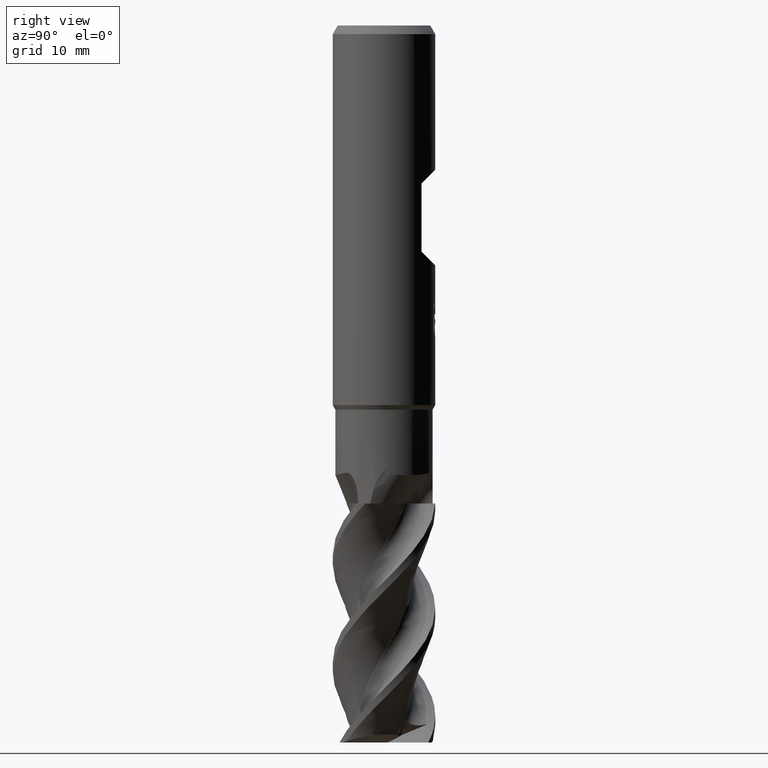
[diagram: clean part render]
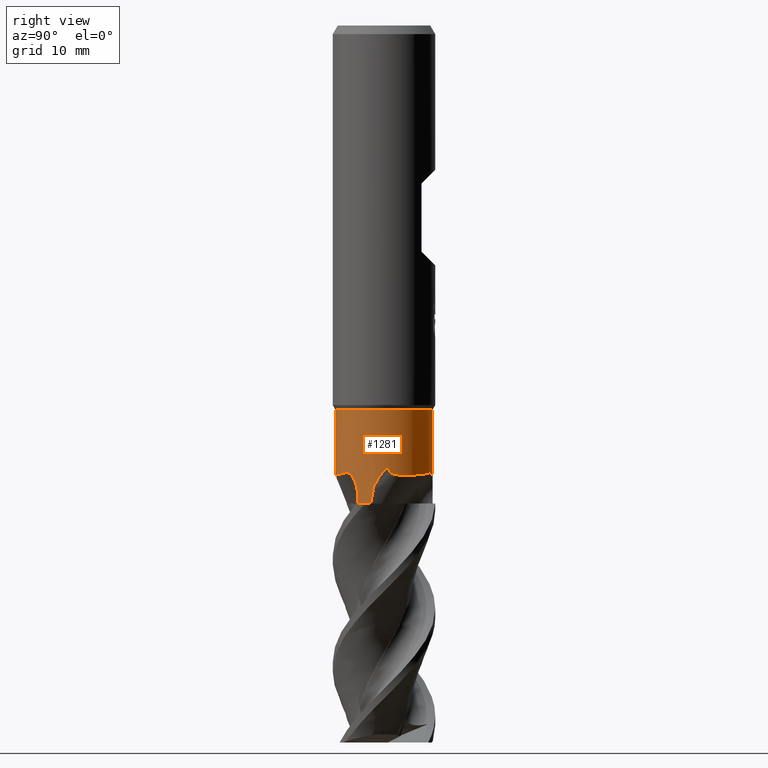
[diagram: same view with one face highlighted and labeled with its STEP entity id]
A machine part, right view. The second image highlights one B-rep face of the part: STEP entity #1281.
In plain terms, the highlighted cylindrical surface (partial cylindrical patch) has radius 5.7 mm, axis along (-0, -0, 1).
Its self-contained STEP definition (entity closure, byte-faithful):
#527=VERTEX_POINT('',#1401);
#601=EDGE_CURVE('',#1101,#697,#1481,.T.);
#627=EDGE_CURVE('',#651,#951,#1510,.T.);
#647=VERTEX_POINT('',#1531);
#651=VERTEX_POINT('',#1535);
#697=VERTEX_POINT('',#1582);
#743=VERTEX_POINT('',#1631);
#795=VERTEX_POINT('',#1689);
#853=VERTEX_POINT('',#1754);
#899=VERTEX_POINT('',#1804);
#923=EDGE_CURVE('',#975,#527,#1830,.T.);
#931=EDGE_CURVE('',#795,#951,#1838,.T.);
#935=EDGE_CURVE('',#1101,#899,#1842,.T.);
#951=VERTEX_POINT('',#1859);
#975=VERTEX_POINT('',#1883);
#981=EDGE_CURVE('',#743,#527,#1889,.T.);
#985=EDGE_CURVE('',#853,#975,#1894,.T.);
#1023=VERTEX_POINT('',#1937);
#1029=VERTEX_POINT('',#1944);
#1043=EDGE_CURVE('',#853,#899,#1959,.T.);
#1073=EDGE_CURVE('',#697,#795,#1993,.T.);
#1101=VERTEX_POINT('',#2025);
#1163=EDGE_CURVE('',#1023,#1029,#2091,.T.);
#1181=EDGE_CURVE('',#651,#647,#2110,.T.);
#1219=EDGE_CURVE('',#1029,#743,#2152,.T.);
#1281=ADVANCED_FACE('',(#2224),#2225,.T.);
#1283=EDGE_CURVE('',#647,#1023,#2227,.T.);
#1401=CARTESIAN_POINT('',(0.260524107690861,5.69399307971233,-56.0));
#1481=B_SPLINE_CURVE_WITH_KNOTS('',3,(#3952,#3953,#3954,#3955,#3956,#3957,#3958,#3959,#3960,#3961,#3962,#3963,#3964,#3965,#3966,#3967),.UNSPECIFIED.,.F.,.F.,(4,2,2,2,2,2,2,4),(0.0,0.319208745488988,0.586412959398004,0.903849423234765,1.44463094120811,2.48440049660311,3.67406009573202,4.86729140007779),.UNSPECIFIED.);
#1510=CIRCLE('',#4060,5.69995);
#1531=CARTESIAN_POINT('',(5.55566007877033,-1.27439047848672,-54.5000919266046));
#1535=CARTESIAN_POINT('',(5.47795040078649,-1.57527439166105,-56.0));
#1582=CARTESIAN_POINT('',(3.22975196455675,-4.69660859024273,-52.4613700765046));
#1631=CARTESIAN_POINT('',(0.277895134400485,5.69317172556533,-55.0896071720585));
#1689=CARTESIAN_POINT('',(4.79148377524665,-3.08725010876153,-55.0896071720501));
#1754=CARTESIAN_POINT('',(0.0,5.69995,-45.0));
#1804=CARTESIAN_POINT('',(6.98019498646986E-016,-5.69995,-45.0));
#1830=CIRCLE('',#5534,5.69995);
#1838=B_SPLINE_CURVE_WITH_KNOTS('',3,(#5547,#5548,#5549,#5550),.UNSPECIFIED.,.F.,.F.,(4,4),(0.0,0.910550026193811),.UNSPECIFIED.);
#1842=LINE('',#5565,#5566);
#1859=CARTESIAN_POINT('',(4.80088060215838,-3.0726170354145,-56.0));
#1883=CARTESIAN_POINT('',(-6.9888358090682E-016,5.69995,-56.0));
#1889=B_SPLINE_CURVE_WITH_KNOTS('',3,(#5758,#5759,#5760,#5761),.UNSPECIFIED.,.F.,.F.,(4,4),(0.0,0.910550026191474),.UNSPECIFIED.);
#1894=LINE('',#5767,#5768);
#1937=CARTESIAN_POINT('',(5.67063119566819,0.57738362049402,-51.956093213384));
#1944=CARTESIAN_POINT('',(2.45250636850405,5.14535154435021,-52.4613700765126));
#1959=CIRCLE('',#5931,5.69995);
#1993=B_SPLINE_CURVE_WITH_KNOTS('',3,(#6285,#6286,#6287,#6288,#6289,#6290,#6291,#6292,#6293,#6294,#6295,#6296,#6297,#6298),.UNSPECIFIED.,.F.,.F.,(4,2,2,2,2,2,4),(0.0,0.54254104660051,1.01275776614395,1.53435956681799,2.27781040110845,3.13136027619039,4.02982234283724),.UNSPECIFIED.);
#2025=CARTESIAN_POINT('',(8.56422809041974E-015,-5.69995,-52.6914200374324));
#2091=B_SPLINE_CURVE_WITH_KNOTS('',3,(#6787,#6788,#6789,#6790,#6791,#6792,#6793,#6794,#6795,#6796,#6797,#6798,#6799,#6800,#6801,#6802),.UNSPECIFIED.,.F.,.F.,(4,2,2,2,2,2,2,4),(0.0,0.31920874551427,0.586412959465529,0.903849423352656,1.44463094141056,2.48440049696918,3.67406009628872,4.86729140082579),.UNSPECIFIED.);
#2110=B_SPLINE_CURVE_WITH_KNOTS('',3,(#6846,#6847,#6848,#6849),.UNSPECIFIED.,.F.,.F.,(4,4),(0.0,2.38754663580588),.UNSPECIFIED.);
#2152=B_SPLINE_CURVE_WITH_KNOTS('',3,(#7196,#7197,#7198,#7199,#7200,#7201,#7202,#7203,#7204,#7205,#7206,#7207,#7208,#7209),.UNSPECIFIED.,.F.,.F.,(4,2,2,2,2,2,4),(0.0,0.542541046600808,1.01275776614438,1.53435956681801,2.27781040110805,3.13136027619003,4.02982234283657),.UNSPECIFIED.);
#2224=FACE_OUTER_BOUND('',#8470,.T.);
#2225=CYLINDRICAL_SURFACE('',#8471,5.69995);
#2227=B_SPLINE_CURVE_WITH_KNOTS('',3,(#8474,#8475,#8476,#8477,#8478,#8479,#8480,#8481,#8482,#8483,#8484,#8485,#8486,#8487,#8488,#8489,#8490,#8491,#8492,#8493,#8494,#8495,#8496,#8497,#8498,#8499,#8500,#8501,#8502,#8503,#8504,#8505,#8506,#8507,#8508,#8509,#8510,#8511,#8512,#8513,#8514,#8515,#8516,#8517,#8518,#8519),.UNSPECIFIED.,.F.,.F.,(4,2,2,2,2,2,2,2,2,2,2,2,2,2,2,2,2,2,2,2,2,2,4),(0.0,0.0210237726201167,0.0477215632215942,0.0958774368042672,0.220134513833004,0.630328034048908,1.2241780742027,1.26687104566688,1.28349811131792,1.29348722385399,1.30406900671954,1.31802845552544,1.34809899800546,1.48768195505663,1.80150197661397,1.93743436383737,1.97529626270767,1.99556156999693,2.00993350161463,2.02378260787721,2.04267421996707,2.07908239354799,2.16361225689341),.UNSPECIFIED.);
#3952=CARTESIAN_POINT('',(-2.33528671371195,-5.19960248165765,-51.9560932118612));
#3953=CARTESIAN_POINT('',(-2.32130442749482,-5.20588231696148,-52.0613863251017));
#3954=CARTESIAN_POINT('',(-2.29421616406499,-5.21804693468987,-52.1503900429818));
#3955=CARTESIAN_POINT('',(-2.21853088175986,-5.25061522924738,-52.2898076956611));
#3956=CARTESIAN_POINT('',(-2.17447217531952,-5.26919584392274,-52.3435079743858));
#3957=CARTESIAN_POINT('',(-2.05738229119267,-5.31613576460572,-52.4440763179353));
#3958=CARTESIAN_POINT('',(-1.9834676247433,-5.34433227588149,-52.4850580100344));
#3959=CARTESIAN_POINT('',(-1.77646260727128,-5.41781957930681,-52.5713945668626));
#3960=CARTESIAN_POINT('',(-1.61920053191238,-5.46807901032385,-52.6075182639015));
#3961=CARTESIAN_POINT('',(-1.11134253000158,-5.60121763032169,-52.68177600615));
#3962=CARTESIAN_POINT('',(-0.669107744816747,-5.68449120864454,-52.6974353337586));
#3963=CARTESIAN_POINT('',(0.448185766364343,-5.71351563785523,-52.6882651168868));
#3964=CARTESIAN_POINT('',(1.04535792251202,-5.63508658439011,-52.6601800038733));
#3965=CARTESIAN_POINT('',(2.19374282976598,-5.29496142782866,-52.5807576936061));
#3966=CARTESIAN_POINT('',(2.73754270474989,-5.03508981414906,-52.5284448898474));
#3967=CARTESIAN_POINT('',(3.22975196455679,-4.69660859024273,-52.4613700765046));
#4060=AXIS2_PLACEMENT_3D('',#9455,#9456,#9457);
#5534=AXIS2_PLACEMENT_3D('',#9803,#9804,#9805);
#5547=CARTESIAN_POINT('',(4.79148377524665,-3.08725010876152,-55.0896071720501));
#5548=CARTESIAN_POINT('',(4.79477312744349,-3.08214495785797,-55.3930630829185));
#5549=CARTESIAN_POINT('',(4.79790589169845,-3.07726493965362,-55.6965333645941));
#5550=CARTESIAN_POINT('',(4.80088060215837,-3.07261703541452,-55.999999999999));
#5565=CARTESIAN_POINT('',(6.97155416387152E-016,-5.69995,-50.5));
#5566=VECTOR('',#9808,1.0);
#5758=CARTESIAN_POINT('',(0.277895134400501,5.69317172556532,-55.0896071720585));
#5759=CARTESIAN_POINT('',(0.271829267929478,5.693467812678,-55.3930630829261));
#5760=CARTESIAN_POINT('',(0.266036666066189,5.69374085700469,-55.696533364598));
#5761=CARTESIAN_POINT('',(0.260524107690877,5.69399307971233,-55.9999999999993));
#5767=CARTESIAN_POINT('',(-6.9888358090682E-016,5.69995,-50.5));
#5768=VECTOR('',#9847,1.0);
#5931=AXIS2_PLACEMENT_3D('',#9912,#9913,#9914);
#6285=CARTESIAN_POINT('',(3.22975196454094,-4.6966085902536,-52.4613700767737));
#6286=CARTESIAN_POINT('',(3.3705159329355,-4.59980837905389,-52.4020331798134));
#6287=CARTESIAN_POINT('',(3.51213464884106,-4.49298268470135,-52.3711232135304));
#6288=CARTESIAN_POINT('',(3.77078759678476,-4.27727056336176,-52.3874368307934));
#6289=CARTESIAN_POINT('',(3.88196193069813,-4.17614235074273,-52.4244357796378));
#6290=CARTESIAN_POINT('',(4.09722263586058,-3.96576018136074,-52.560177736179));
#6291=CARTESIAN_POINT('',(4.19410667163902,-3.86194717270288,-52.6619382639899));
#6292=CARTESIAN_POINT('',(4.39522219758479,-3.63365129241234,-52.9537462704789));
#6293=CARTESIAN_POINT('',(4.48555378682741,-3.51890104466585,-53.1631594819872));
#6294=CARTESIAN_POINT('',(4.6351779290559,-3.31997806307766,-53.6357732809267));
#6295=CARTESIAN_POINT('',(4.69087914206175,-3.23876487177833,-53.9114752975792));
#6296=CARTESIAN_POINT('',(4.76789972345021,-3.12435031508374,-54.483474216166));
#6297=CARTESIAN_POINT('',(4.7882055191796,-3.09233803821409,-54.7871749290002));
#6298=CARTESIAN_POINT('',(4.79148377519248,-3.08725010884559,-55.0896071720505));
#6787=CARTESIAN_POINT('',(5.67063119555211,0.577383621634106,-51.9560932118692));
#6788=CARTESIAN_POINT('',(5.66907854934812,0.592632554354219,-52.0613863251181));
#6789=CARTESIAN_POINT('',(5.66606928561303,0.622173987495297,-52.1503900429959));
#6790=CARTESIAN_POINT('',(5.65643161490562,0.70400351193938,-52.2898076956694));
#6791=CARTESIAN_POINT('',(5.65049354601224,0.751449778312318,-52.3435079743941));
#6792=CARTESIAN_POINT('',(5.63259976771192,0.876322552833679,-52.4440763179435));
#6793=CARTESIAN_POINT('',(5.62006132955017,0.954432787328827,-52.4850580100426));
#6794=CARTESIAN_POINT('',(5.58020069243614,1.17044804288294,-52.5713945668708));
#6795=CARTESIAN_POINT('',(5.54509559879726,1.33177071070394,-52.6075182639097));
#6796=CARTESIAN_POINT('',(5.40646802498477,1.83815795187312,-52.6817760061583));
#6797=CARTESIAN_POINT('',(5.25746766668404,2.26278129944133,-52.6974353337667));
#6798=CARTESIAN_POINT('',(4.72395680412104,3.24489807821243,-52.6882651168949));
#6799=CARTESIAN_POINT('',(4.3574491733515,3.72284980913685,-52.6601800038815));
#6800=CARTESIAN_POINT('',(3.48869969367593,4.54731773386117,-52.5807576936143));
#6801=CARTESIAN_POINT('',(2.99174433701482,4.88832643333249,-52.5284448898555));
#6802=CARTESIAN_POINT('',(2.45250636850403,5.14535154435023,-52.4613700765126));
#6846=CARTESIAN_POINT('',(5.47795040078655,-1.57527439166086,-55.9999999999993));
#6847=CARTESIAN_POINT('',(5.53731957880514,-1.36882057368289,-55.2336922554764));
#6848=CARTESIAN_POINT('',(5.55216441793534,-1.28962968786551,-54.7962236187469));
#6849=CARTESIAN_POINT('',(5.55566007851462,-1.2743904796015,-54.5000919281889));
#7196=CARTESIAN_POINT('',(2.45250636852133,5.14535154434196,-52.4613700767817));
#7197=CARTESIAN_POINT('',(2.29829294233332,5.21885661130934,-52.4020331798214));
#7198=CARTESIAN_POINT('',(2.13496981929441,5.28808916975858,-52.3711232135385));
#7199=CARTESIAN_POINT('',(1.8188311683384,5.4042331327717,-52.3874368308015));
#7200=CARTESIAN_POINT('',(1.67566440021442,5.44994882387996,-52.4244357796458));
#7201=CARTESIAN_POINT('',(1.38583774444498,5.53117897829624,-52.560177736187));
#7202=CARTESIAN_POINT('',(1.24749102381478,5.56317651017261,-52.6619382639979));
#7203=CARTESIAN_POINT('',(0.949223228930946,5.62319972459185,-52.9537462704869));
#7204=CARTESIAN_POINT('',(0.804680804670617,5.64405405176693,-53.1631594819953));
#7205=CARTESIAN_POINT('',(0.557596378104511,5.67417086916216,-53.6357732809346));
#7206=CARTESIAN_POINT('',(0.459413084813925,5.68180293899718,-53.9114752975871));
#7207=CARTESIAN_POINT('',(0.32181688145937,5.69129744074655,-54.4834742161742));
#7208=CARTESIAN_POINT('',(0.283940538592592,5.69287663725744,-54.7871749290085));
#7209=CARTESIAN_POINT('',(0.277895134500383,5.69317172556046,-55.0896071720589));
#8470=EDGE_LOOP('',(#10239,#10240,#10241,#10242,#10243,#10244,#10245,#10246,#10247,#10248,#10249,#10250,#10251));
#8471=AXIS2_PLACEMENT_3D('',#10252,#10253,#10254);
#8474=CARTESIAN_POINT('',(5.55566007877027,-1.27439047848703,-54.5000919266051));
#8475=CARTESIAN_POINT('',(5.55432466850303,-1.28021215217003,-54.496426439375));
#8476=CARTESIAN_POINT('',(5.55318742107839,-1.28512933170112,-54.4916927915595));
#8477=CARTESIAN_POINT('',(5.55101339124211,-1.29449188771762,-54.4790165461624));
#8478=CARTESIAN_POINT('',(5.55013195380165,-1.29825772865929,-54.4708148635267));
#8479=CARTESIAN_POINT('',(5.54834102559015,-1.30589714293598,-54.4471322451788));
#8480=CARTESIAN_POINT('',(5.5478938726205,-1.30778583170113,-54.4299655624089));
#8481=CARTESIAN_POINT('',(5.5475255028807,-1.3093479810073,-54.3725833026609));
#8482=CARTESIAN_POINT('',(5.54945444819658,-1.30118142504954,-54.3246124232558));
#8483=CARTESIAN_POINT('',(5.55858868952533,-1.26193434309654,-54.1514277326954));
#8484=CARTESIAN_POINT('',(5.57513108401015,-1.19124288567145,-53.9686194893629));
#8485=CARTESIAN_POINT('',(5.62556332646762,-0.931141011105032,-53.4394741998526));
#8486=CARTESIAN_POINT('',(5.66069798502736,-0.713056189768748,-53.0770262034028));
#8487=CARTESIAN_POINT('',(5.68250840459253,-0.445927537887576,-52.699181468963));
#8488=CARTESIAN_POINT('',(5.68389780563471,-0.427864884665414,-52.6739170782316));
#8489=CARTESIAN_POINT('',(5.6857191327791,-0.402589613127508,-52.638966833011));
#8490=CARTESIAN_POINT('',(5.68621789009547,-0.395483420542569,-52.6291841366486));
#8491=CARTESIAN_POINT('',(5.6869969845886,-0.384075144942219,-52.613549543245));
#8492=CARTESIAN_POINT('',(5.68728505554438,-0.379785786163898,-52.6076870046226));
#8493=CARTESIAN_POINT('',(5.68786924370367,-0.370937027914283,-52.595625725316));
#8494=CARTESIAN_POINT('',(5.68816484803272,-0.366376344971998,-52.5894271825565));
#8495=CARTESIAN_POINT('',(5.68883884893626,-0.355779472632438,-52.5750665027738));
#8496=CARTESIAN_POINT('',(5.6892136040391,-0.349736193500109,-52.5669080767274));
#8497=CARTESIAN_POINT('',(5.69036783041994,-0.330628011678056,-52.5412119204103));
#8498=CARTESIAN_POINT('',(5.69111562682395,-0.317501974636447,-52.5237069676804));
#8499=CARTESIAN_POINT('',(5.6950954171401,-0.243063391883142,-52.4252862550785));
#8500=CARTESIAN_POINT('',(5.69748818032447,-0.179553661455424,-52.3445399508903));
#8501=CARTESIAN_POINT('',(5.70172232889983,0.0304408470333024,-52.0905102475739));
#8502=CARTESIAN_POINT('',(5.69870759491359,0.163502580833012,-51.9492672362458));
#8503=CARTESIAN_POINT('',(5.69094111745004,0.324002878675126,-51.8090872996164));
#8504=CARTESIAN_POINT('',(5.68649448958903,0.396929115918974,-51.7499971359087));
#8505=CARTESIAN_POINT('',(5.67965671997947,0.480901682730624,-51.7115113305587));
#8506=CARTESIAN_POINT('',(5.67785615749471,0.501778962816337,-51.7039380543424));
#8507=CARTESIAN_POINT('',(5.6750361342748,0.53245679268818,-51.700279111176));
#8508=CARTESIAN_POINT('',(5.67398728873184,0.543514129196144,-51.7004143171265));
#8509=CARTESIAN_POINT('',(5.67225030924738,0.561303334782733,-51.7051508721582));
#8510=CARTESIAN_POINT('',(5.6715719796673,0.568100620134006,-51.7083730631618));
#8511=CARTESIAN_POINT('',(5.670368307025,0.579989355484021,-51.7175458305417));
#8512=CARTESIAN_POINT('',(5.66987742572133,0.584752169281495,-51.7230983616191));
#8513=CARTESIAN_POINT('',(5.66892812979113,0.593895610470803,-51.737963998567));
#8514=CARTESIAN_POINT('',(5.6685594685456,0.597385083340518,-51.7477154165787));
#8515=CARTESIAN_POINT('',(5.66784488359016,0.604139366435886,-51.7764368864832));
#8516=CARTESIAN_POINT('',(5.66778597457415,0.604676117659077,-51.7976400010044));
#8517=CARTESIAN_POINT('',(5.66814787943326,0.601278075692582,-51.8620130507256));
#8518=CARTESIAN_POINT('',(5.66938080098882,0.58966406424773,-51.9127892903441));
#8519=CARTESIAN_POINT('',(5.67063119566816,0.577383620494351,-51.9560932133836));
#9455=CARTESIAN_POINT('',(0.0,0.0,-56.0));
#9456=DIRECTION('',(0.0,0.0,-1.0));
#9457=DIRECTION('',(0.0,1.0,0.0));
#9803=CARTESIAN_POINT('',(0.0,0.0,-56.0));
#9804=DIRECTION('',(0.0,0.0,-1.0));
#9805=DIRECTION('',(0.0,1.0,0.0));
#9808=DIRECTION('',(-0.0,-0.0,1.0));
#9847=DIRECTION('',(0.0,0.0,-1.0));
#9912=CARTESIAN_POINT('',(0.0,0.0,-45.0));
#9913=DIRECTION('',(0.0,0.0,-1.0));
#9914=DIRECTION('',(0.0,1.0,0.0));
#10239=ORIENTED_EDGE('',*,*,#985,.F.);
#10240=ORIENTED_EDGE('',*,*,#1043,.T.);
#10241=ORIENTED_EDGE('',*,*,#935,.F.);
#10242=ORIENTED_EDGE('',*,*,#601,.T.);
#10243=ORIENTED_EDGE('',*,*,#1073,.T.);
#10244=ORIENTED_EDGE('',*,*,#931,.T.);
#10245=ORIENTED_EDGE('',*,*,#627,.F.);
#10246=ORIENTED_EDGE('',*,*,#1181,.T.);
#10247=ORIENTED_EDGE('',*,*,#1283,.T.);
#10248=ORIENTED_EDGE('',*,*,#1163,.T.);
#10249=ORIENTED_EDGE('',*,*,#1219,.T.);
#10250=ORIENTED_EDGE('',*,*,#981,.T.);
#10251=ORIENTED_EDGE('',*,*,#923,.F.);
#10252=CARTESIAN_POINT('',(0.0,0.0,-50.5));
#10253=DIRECTION('',(-0.0,-0.0,1.0));
#10254=DIRECTION('',(0.0,1.0,0.0));